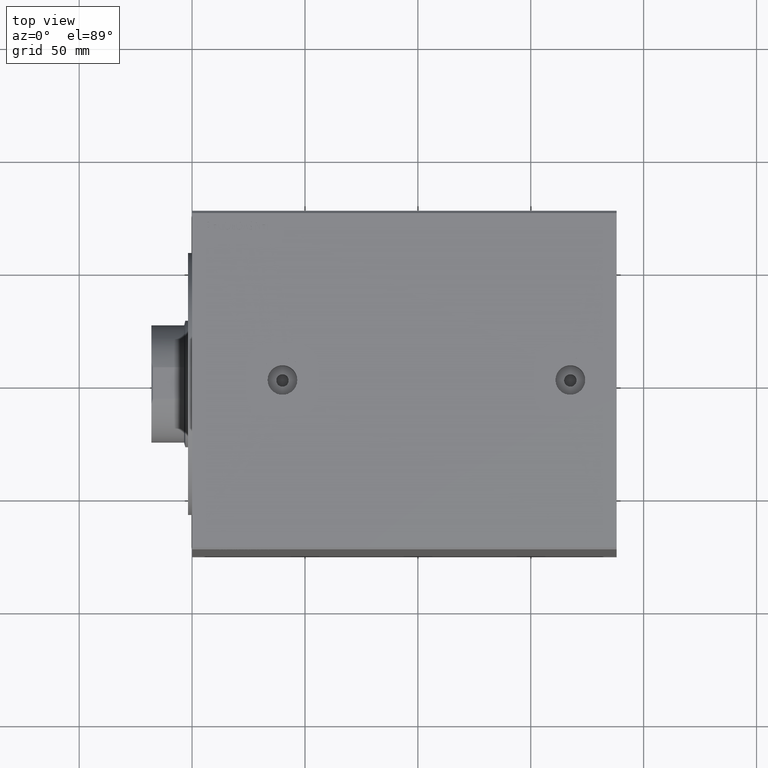
[diagram: clean part render]
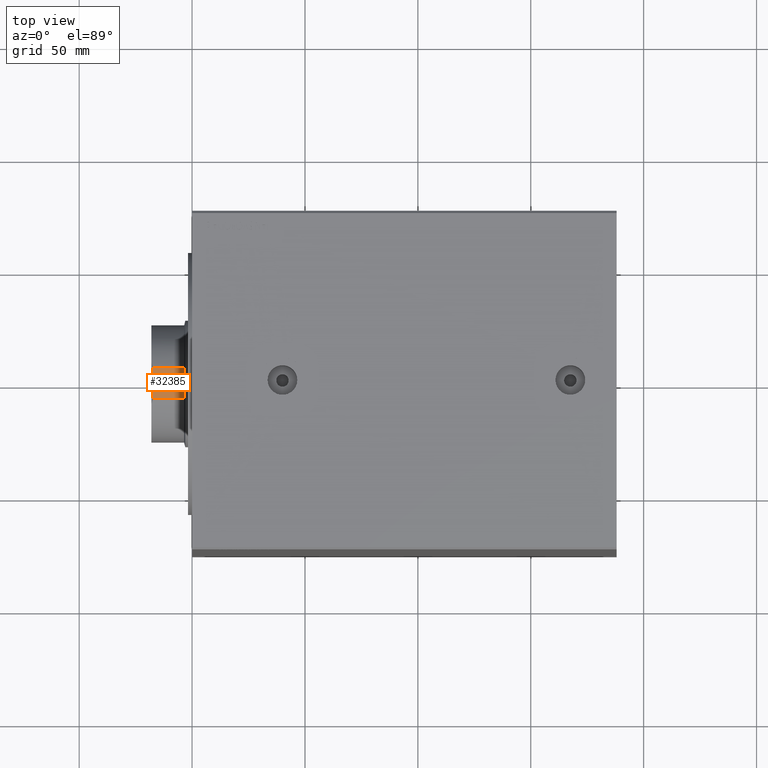
[diagram: same view with one face highlighted and labeled with its STEP entity id]
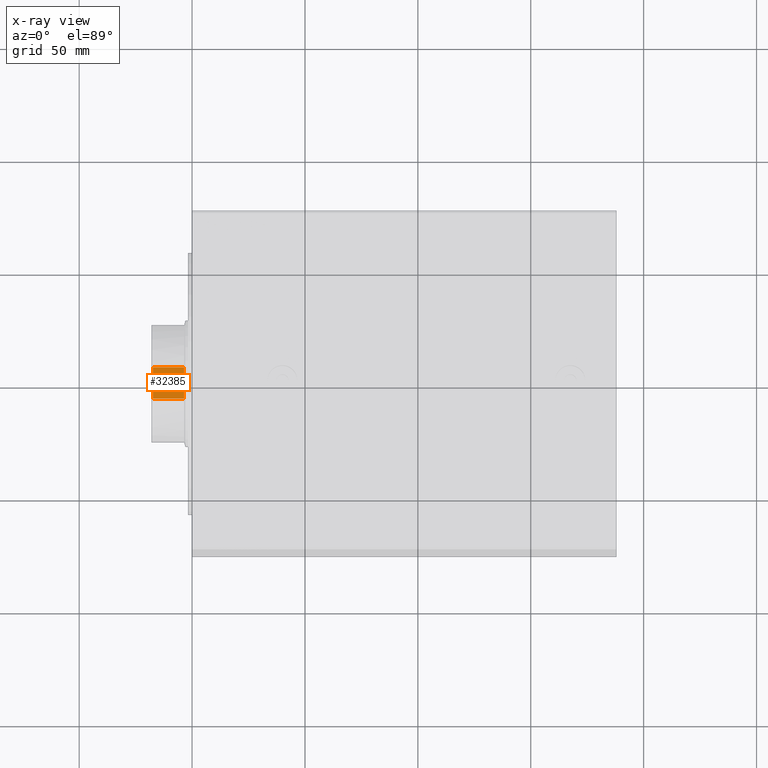
[diagram: x-ray of the same camera — body ghosted, the highlighted face saturated]
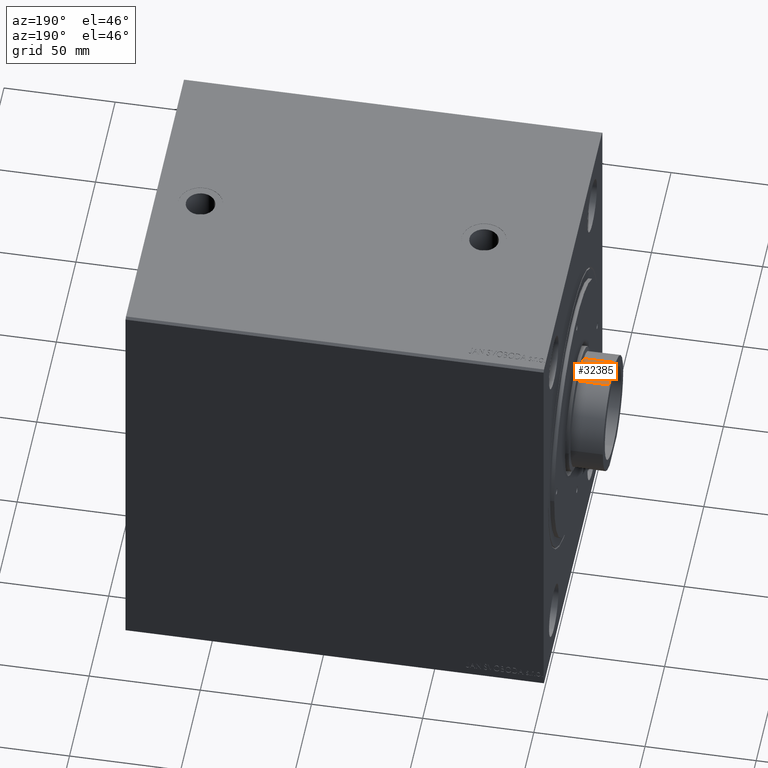
[diagram: same view with one face highlighted and labeled with its STEP entity id]
A machine part, top view. The second image highlights one B-rep face of the part: STEP entity #32385.
The next image is the same camera in x-ray: the body ghosted, the highlighted face saturated — about 0% of this face is hidden behind the body in this view.
A second angle (auxiliary view) of the same face is appended — the face is thin or edge-on in the first view.
In plain terms, the highlighted planar face has unit normal (0, 0, -1).
Its self-contained STEP definition (entity closure, byte-faithful):
#4181 = ORIENTED_EDGE ( 'NONE', *, *, #43802, .F. ) ;
#4918 = VERTEX_POINT ( 'NONE', #7549 ) ;
#5588 = ORIENTED_EDGE ( 'NONE', *, *, #21628, .T. ) ;
#7549 = CARTESIAN_POINT ( 'NONE',  ( -25.00000000000000000, -6.994397758206175375, 88.50000000000000000 ) ) ;
#7847 = LINE ( 'NONE', #18155, #11143 ) ;
#8613 = EDGE_CURVE ( 'NONE', #21947, #4918, #9073, .T. ) ;
#9073 = LINE ( 'NONE', #26117, #20332 ) ;
#9606 = VERTEX_POINT ( 'NONE', #44366 ) ;
#11143 = VECTOR ( 'NONE', #34793, 1000.000000000000000 ) ;
#14649 = DIRECTION ( 'NONE',  ( -0.000000000000000000, -1.000000000000000000, 0.000000000000000000 ) ) ;
#14874 = LINE ( 'NONE', #28576, #29964 ) ;
#18155 = CARTESIAN_POINT ( 'NONE',  ( -25.00000000000000000, 6.994397758206147842, 103.0000000000000142 ) ) ;
#20332 = VECTOR ( 'NONE', #29939, 1000.000000000000000 ) ;
#21628 = EDGE_CURVE ( 'NONE', #9606, #4918, #14874, .T. ) ;
#21635 = EDGE_LOOP ( 'NONE', ( #35893, #31550, #4181, #5588 ) ) ;
#21947 = VERTEX_POINT ( 'NONE', #29412 ) ;
#23585 = AXIS2_PLACEMENT_3D ( 'NONE', #34351, #37270, #24230 ) ;
#24230 = DIRECTION ( 'NONE',  ( 0.000000000000000000, 0.000000000000000000, -1.000000000000000000 ) ) ;
#26117 = CARTESIAN_POINT ( 'NONE',  ( -25.00000000000000000, -6.994397758206177151, 103.0000000000000142 ) ) ;
#28576 = CARTESIAN_POINT ( 'NONE',  ( -25.00000000000000000, -54.54356057317856710, 88.50000000000000000 ) ) ;
#28709 = LINE ( 'NONE', #28925, #37028 ) ;
#28925 = CARTESIAN_POINT ( 'NONE',  ( -25.00000000000000000, -54.54356057317858841, 102.2900000000000489 ) ) ;
#29412 = CARTESIAN_POINT ( 'NONE',  ( -25.00000000000000000, -6.994397758206177151, 102.2900000000000631 ) ) ;
#29939 = DIRECTION ( 'NONE',  ( 0.000000000000000000, 1.432437047329752280E-16, -1.000000000000000000 ) ) ;
#29964 = VECTOR ( 'NONE', #14649, 1000.000000000000000 ) ;
#31550 = ORIENTED_EDGE ( 'NONE', *, *, #32529, .T. ) ;
#31727 = CARTESIAN_POINT ( 'NONE',  ( -25.00000000000000000, 6.994397758206147842, 102.2900000000000631 ) ) ;
#32385 = ADVANCED_FACE ( 'NONE', ( #44001 ), #44230, .F. ) ;
#32529 = EDGE_CURVE ( 'NONE', #21947, #36603, #28709, .T. ) ;
#34351 = CARTESIAN_POINT ( 'NONE',  ( -25.00000000000000000, -54.54356057317856710, -26.06439237389596286 ) ) ;
#34793 = DIRECTION ( 'NONE',  ( -0.000000000000000000, -1.432437047329752280E-16, 1.000000000000000000 ) ) ;
#35893 = ORIENTED_EDGE ( 'NONE', *, *, #8613, .F. ) ;
#36603 = VERTEX_POINT ( 'NONE', #31727 ) ;
#37028 = VECTOR ( 'NONE', #41764, 1000.000000000000000 ) ;
#37270 = DIRECTION ( 'NONE',  ( 1.000000000000000000, -0.000000000000000000, 0.000000000000000000 ) ) ;
#41764 = DIRECTION ( 'NONE',  ( 0.000000000000000000, 1.000000000000000000, 1.432437047329752280E-16 ) ) ;
#43802 = EDGE_CURVE ( 'NONE', #9606, #36603, #7847, .T. ) ;
#44001 = FACE_OUTER_BOUND ( 'NONE', #21635, .T. ) ;
#44230 = PLANE ( 'NONE',  #23585 ) ;
#44366 = CARTESIAN_POINT ( 'NONE',  ( -25.00000000000000000, 6.994397758206149618, 88.50000000000000000 ) ) ;